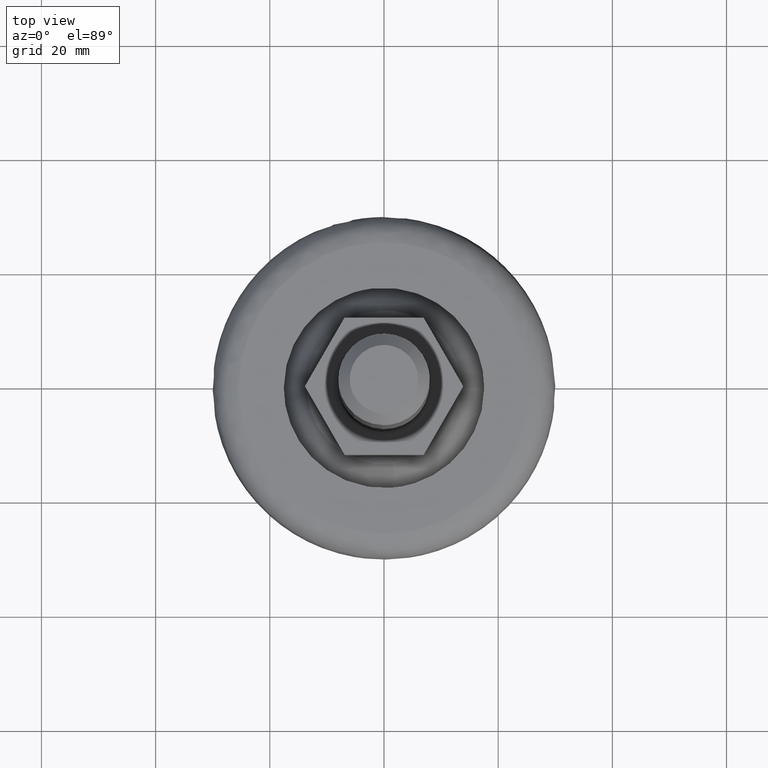
[diagram: clean part render]
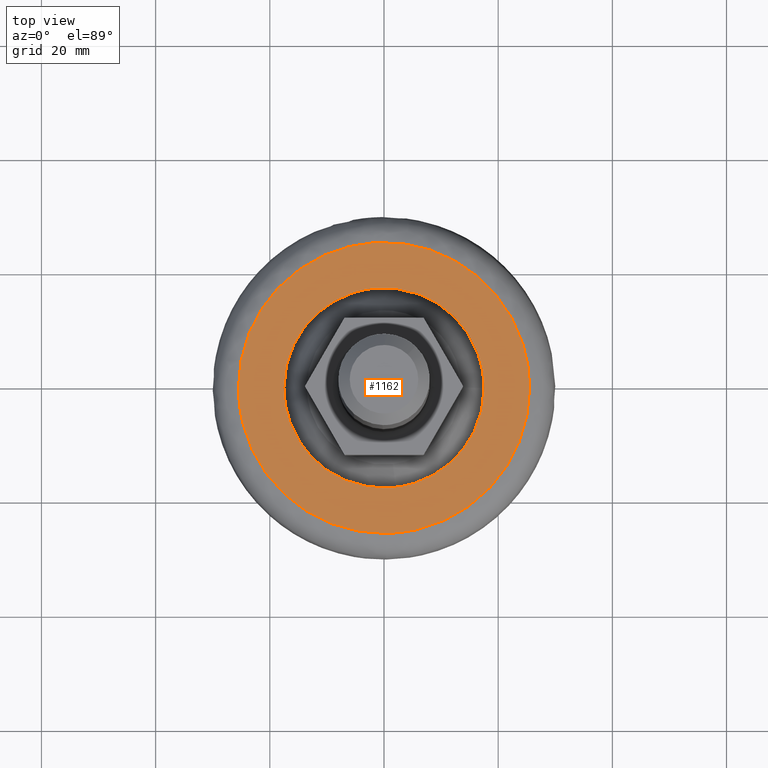
[diagram: same view with one face highlighted and labeled with its STEP entity id]
A machine part, top view. The second image highlights one B-rep face of the part: STEP entity #1162.
In plain terms, the highlighted face is a freeform B-spline surface patch.
Its self-contained STEP definition (entity closure, byte-faithful):
#731=CARTESIAN_POINT('',(1.071047226127585,-17.511906281621769,9.0));
#732=VERTEX_POINT('',#731);
#738=CARTESIAN_POINT('',(17.544628915358050,0.0,9.0));
#739=VERTEX_POINT('',#738);
#740=CARTESIAN_POINT('',(17.544628915358050,0.0,9.0));
#741=CARTESIAN_POINT('',(17.544628915358050,-16.504364116392505,9.000000000000002));
#742=CARTESIAN_POINT('',(1.071047226127585,-17.511906281621769,9.0));
#750=(BOUNDED_CURVE()B_SPLINE_CURVE(2,(#740,#741,#742),.UNSPECIFIED.,.F.,.U.)B_SPLINE_CURVE_WITH_KNOTS((3,3),(0.500000000000000,0.739333225771787),.UNSPECIFIED.)CURVE()GEOMETRIC_REPRESENTATION_ITEM()RATIONAL_B_SPLINE_CURVE((1.0,0.719603684538778,0.976072606468419))REPRESENTATION_ITEM(''));
#751=EDGE_CURVE('',#739,#732,#750,.T.);
#753=CARTESIAN_POINT('',(-2.070858129022474,17.421984685649399,9.0));
#754=VERTEX_POINT('',#753);
#755=CARTESIAN_POINT('',(-2.070858129022474,17.421984685649395,9.0));
#756=CARTESIAN_POINT('',(-1.039060797383235,17.544628915358050,9.000000000000002));
#757=CARTESIAN_POINT('',(0.0,17.544628915358050,9.0));
#758=CARTESIAN_POINT('',(17.544628915358054,17.544628915358054,9.0));
#759=CARTESIAN_POINT('',(17.544628915358050,0.0,9.0));
#767=(BOUNDED_CURVE()B_SPLINE_CURVE(2,(#755,#756,#757,#758,#759),.UNSPECIFIED.,.F.,.U.)B_SPLINE_CURVE_WITH_KNOTS((3,2,3),(0.229562558078839,0.250000000000000,0.500000000000000),.UNSPECIFIED.)CURVE()GEOMETRIC_REPRESENTATION_ITEM()RATIONAL_B_SPLINE_CURVE((0.956026919935276,0.976056047405593,1.0,0.707106781186547,1.0))REPRESENTATION_ITEM(''));
#768=EDGE_CURVE('',#754,#739,#767,.T.);
#812=CARTESIAN_POINT('',(-17.544628915358050,0.0,9.0));
#813=VERTEX_POINT('',#812);
#814=CARTESIAN_POINT('',(-17.544628915358050,0.0,9.0));
#815=CARTESIAN_POINT('',(-17.544628915358050,15.582700321803660,9.0));
#816=CARTESIAN_POINT('',(-2.070858129022474,17.421984685649395,9.0));
#824=(BOUNDED_CURVE()B_SPLINE_CURVE(2,(#814,#815,#816),.UNSPECIFIED.,.F.,.U.)B_SPLINE_CURVE_WITH_KNOTS((3,3),(0.0,0.229562558078839),.UNSPECIFIED.)CURVE()GEOMETRIC_REPRESENTATION_ITEM()RATIONAL_B_SPLINE_CURVE((1.0,0.731050733780954,0.956026919935276))REPRESENTATION_ITEM(''));
#825=EDGE_CURVE('',#813,#754,#824,.T.);
#827=CARTESIAN_POINT('',(1.071047226127585,-17.511906281621769,9.0));
#828=CARTESIAN_POINT('',(0.536023483999692,-17.544628915358050,9.0));
#829=CARTESIAN_POINT('',(0.0,-17.544628915358050,9.0));
#830=CARTESIAN_POINT('',(-17.544628915358054,-17.544628915358054,9.0));
#831=CARTESIAN_POINT('',(-17.544628915358050,0.0,9.0));
#839=(BOUNDED_CURVE()B_SPLINE_CURVE(2,(#827,#828,#829,#830,#831),.UNSPECIFIED.,.F.,.U.)B_SPLINE_CURVE_WITH_KNOTS((3,2,3),(0.739333225771787,0.750000000000000,1.0),.UNSPECIFIED.)CURVE()GEOMETRIC_REPRESENTATION_ITEM()RATIONAL_B_SPLINE_CURVE((0.976072606468419,0.987503096647769,1.0,0.707106781186547,1.0))REPRESENTATION_ITEM(''));
#840=EDGE_CURVE('',#732,#813,#839,.T.);
#923=CARTESIAN_POINT('',(-1.778197915262005,25.437924683399011,8.999999999999996));
#924=VERTEX_POINT('',#923);
#940=CARTESIAN_POINT('',(25.500000000000000,0.0,9.0));
#941=VERTEX_POINT('',#940);
#942=CARTESIAN_POINT('',(-1.778197915262005,25.437924683399018,8.999999999999996));
#943=CARTESIAN_POINT('',(-0.890182454860590,25.500000000000000,9.0));
#944=CARTESIAN_POINT('',(0.0,25.500000000000000,9.0));
#945=CARTESIAN_POINT('',(25.499999999999993,25.499999999999993,9.000000000000002));
#946=CARTESIAN_POINT('',(25.500000000000000,0.0,9.0));
#954=(BOUNDED_CURVE()B_SPLINE_CURVE(2,(#942,#943,#944,#945,#946),.UNSPECIFIED.,.F.,.U.)B_SPLINE_CURVE_WITH_KNOTS((3,2,3),(0.237833686534388,0.250000000000000,0.500000000000000),.UNSPECIFIED.)CURVE()GEOMETRIC_REPRESENTATION_ITEM()RATIONAL_B_SPLINE_CURVE((0.972879876385487,0.985746277151853,1.0,0.707106781186548,1.0))REPRESENTATION_ITEM(''));
#955=EDGE_CURVE('',#924,#941,#954,.T.);
#957=CARTESIAN_POINT('',(0.320434017099633,-25.497986627703860,8.999999999999998));
#958=VERTEX_POINT('',#957);
#959=CARTESIAN_POINT('',(25.500000000000000,0.0,9.0));
#960=CARTESIAN_POINT('',(25.500000000000004,-25.181554212502789,9.000000000000002));
#961=CARTESIAN_POINT('',(0.320434017099633,-25.497986627703856,8.999999999999998));
#969=(BOUNDED_CURVE()B_SPLINE_CURVE(2,(#959,#960,#961),.UNSPECIFIED.,.F.,.U.)B_SPLINE_CURVE_WITH_KNOTS((3,3),(0.500000000000000,0.747784295920794),.UNSPECIFIED.)CURVE()GEOMETRIC_REPRESENTATION_ITEM()RATIONAL_B_SPLINE_CURVE((1.0,0.709702639985334,0.994854295641863))REPRESENTATION_ITEM(''));
#970=EDGE_CURVE('',#941,#958,#969,.T.);
#1069=CARTESIAN_POINT('',(-25.500000000000000,0.0,9.0));
#1070=VERTEX_POINT('',#1069);
#1071=CARTESIAN_POINT('',(0.320434017099633,-25.497986627703860,8.999999999999998));
#1072=CARTESIAN_POINT('',(0.160223333860960,-25.500000000000004,9.0));
#1073=CARTESIAN_POINT('',(0.0,-25.500000000000000,9.0));
#1074=CARTESIAN_POINT('',(-25.499999999999993,-25.499999999999993,9.000000000000002));
#1075=CARTESIAN_POINT('',(-25.500000000000000,0.0,9.0));
#1083=(BOUNDED_CURVE()B_SPLINE_CURVE(2,(#1071,#1072,#1073,#1074,#1075),.UNSPECIFIED.,.F.,.U.)B_SPLINE_CURVE_WITH_KNOTS((3,2,3),(0.747784295920793,0.750000000000000,1.0),.UNSPECIFIED.)CURVE()GEOMETRIC_REPRESENTATION_ITEM()RATIONAL_B_SPLINE_CURVE((0.994854295641861,0.997404141201212,1.0,0.707106781186548,1.0))REPRESENTATION_ITEM(''));
#1084=EDGE_CURVE('',#958,#1070,#1083,.T.);
#1086=CARTESIAN_POINT('',(-25.500000000000000,0.0,9.0));
#1087=CARTESIAN_POINT('',(-25.500000000000000,23.779689605195276,9.0));
#1088=CARTESIAN_POINT('',(-1.778197915262005,25.437924683399014,8.999999999999996));
#1096=(BOUNDED_CURVE()B_SPLINE_CURVE(2,(#1086,#1087,#1088),.UNSPECIFIED.,.F.,.U.)B_SPLINE_CURVE_WITH_KNOTS((3,3),(0.0,0.237833686534388),.UNSPECIFIED.)CURVE()GEOMETRIC_REPRESENTATION_ITEM()RATIONAL_B_SPLINE_CURVE((1.0,0.721360504034694,0.972879876385487))REPRESENTATION_ITEM(''));
#1097=EDGE_CURVE('',#1070,#924,#1096,.T.);
#1145=CARTESIAN_POINT('',(28.047449901152099,-28.045190203678800,9.0));
#1146=CARTESIAN_POINT('',(-28.047451269078699,-28.045190203678800,9.0));
#1147=CARTESIAN_POINT('',(28.047449901152099,28.044296920780219,9.0));
#1148=CARTESIAN_POINT('',(-28.047451269078699,28.044296920780219,9.0));
#1149=B_SPLINE_SURFACE_WITH_KNOTS('',1,1,((#1145,#1147),(#1146,#1148)),.UNSPECIFIED.,.F.,.F.,.U.,(2,2),(2,2),(0.0,56.094901170230798),(0.0,56.089487124459019),.UNSPECIFIED.);
#1150=ORIENTED_EDGE('',*,*,#1084,.F.);
#1151=ORIENTED_EDGE('',*,*,#970,.F.);
#1152=ORIENTED_EDGE('',*,*,#955,.F.);
#1153=ORIENTED_EDGE('',*,*,#1097,.F.);
#1154=EDGE_LOOP('',(#1150,#1151,#1152,#1153));
#1155=FACE_OUTER_BOUND('',#1154,.T.);
#1156=ORIENTED_EDGE('',*,*,#751,.T.);
#1157=ORIENTED_EDGE('',*,*,#840,.T.);
#1158=ORIENTED_EDGE('',*,*,#825,.T.);
#1159=ORIENTED_EDGE('',*,*,#768,.T.);
#1160=EDGE_LOOP('',(#1156,#1157,#1158,#1159));
#1161=FACE_BOUND('',#1160,.T.);
#1162=ADVANCED_FACE('',(#1155,#1161),#1149,.F.);